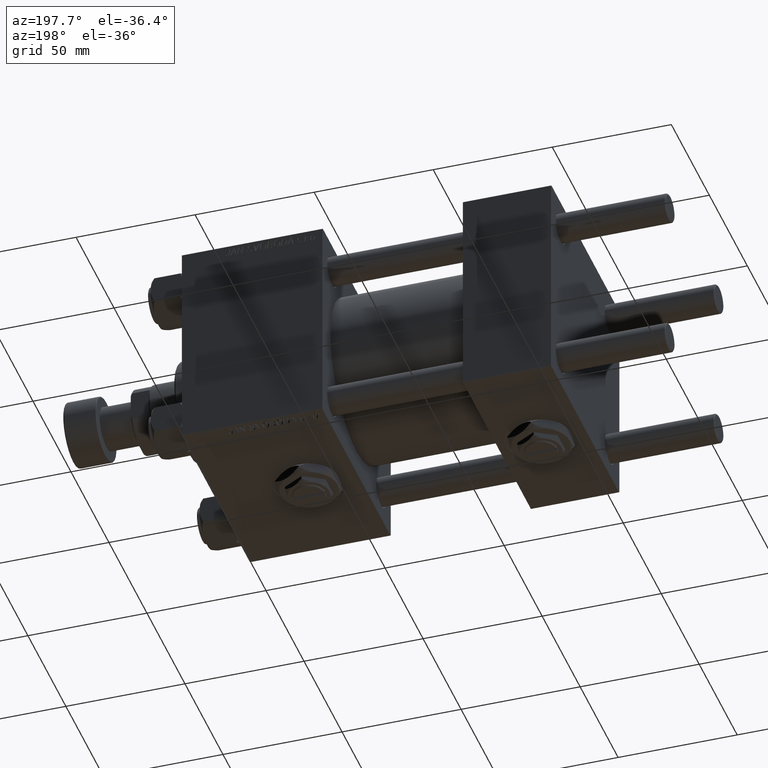
[diagram: clean part render]
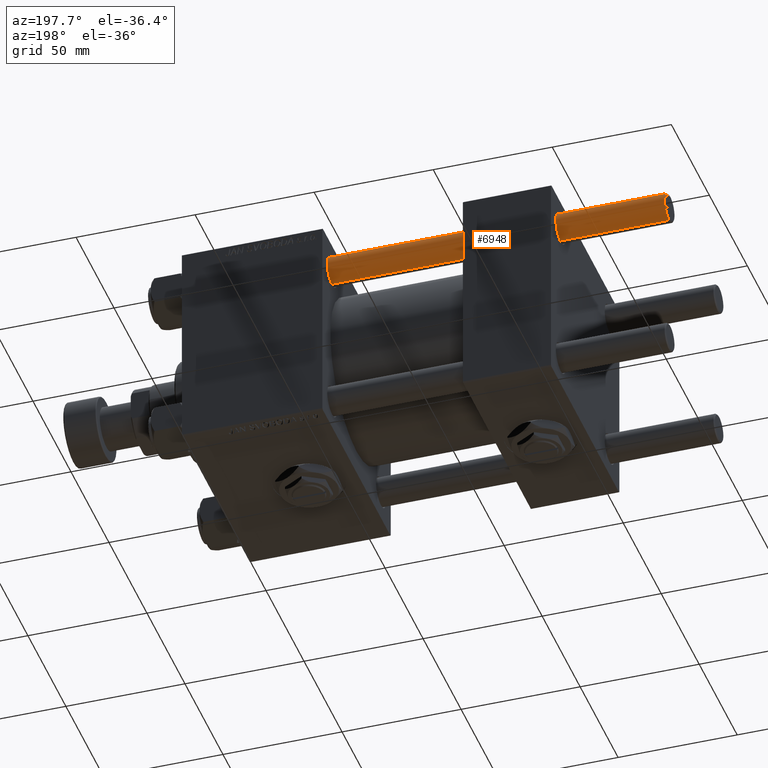
[diagram: same view with one face highlighted and labeled with its STEP entity id]
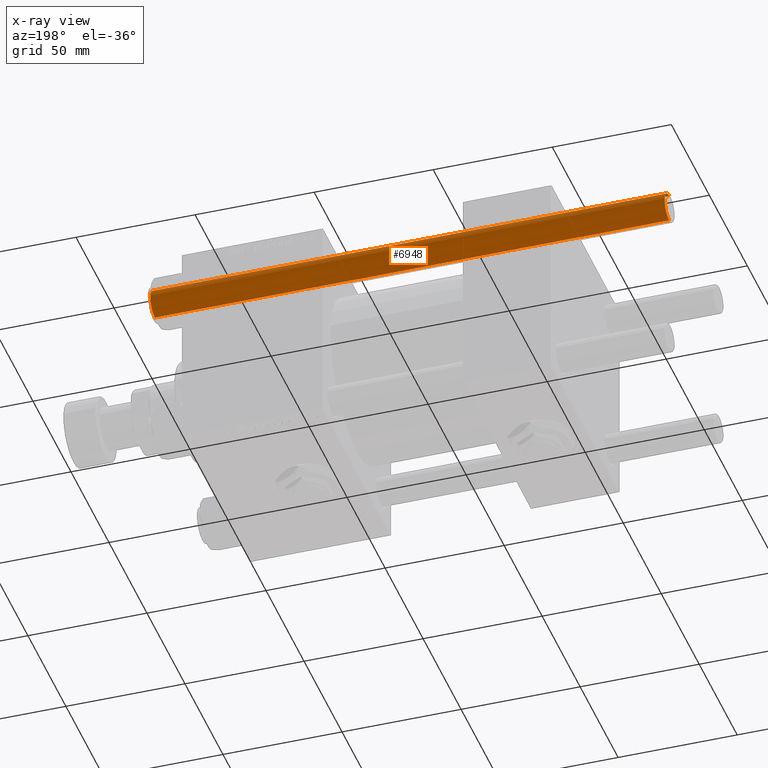
[diagram: x-ray of the same camera — body ghosted, the highlighted face saturated]
A machine part, auxiliary view. The second image highlights one B-rep face of the part: STEP entity #6948.
The next image is the same camera in x-ray: the body ghosted, the highlighted face saturated — about 0% of this face is hidden behind the body in this view.
In plain terms, the highlighted cylindrical surface (edge-blend (fillet) strip) has radius 6 mm, axis along (-1, -0, -0).
Its self-contained STEP definition (entity closure, byte-faithful):
#985 = DIRECTION ( 'NONE',  ( -1.000000000000000000, 0.000000000000000000, 0.000000000000000000 ) ) ;
#1518 = AXIS2_PLACEMENT_3D ( 'NONE', #31226, #27236, #10852 ) ;
#2584 = LINE ( 'NONE', #35120, #11456 ) ;
#4341 = ORIENTED_EDGE ( 'NONE', *, *, #41572, .F. ) ;
#6948 = ADVANCED_FACE ( 'NONE', ( #40158 ), #24029, .T. ) ;
#8688 = DIRECTION ( 'NONE',  ( -0.000000000000000000, -0.000000000000000000, -1.000000000000000000 ) ) ;
#9658 = VECTOR ( 'NONE', #31721, 1000.000000000000000 ) ;
#10852 = DIRECTION ( 'NONE',  ( 1.000000000000000000, 0.000000000000000000, 0.000000000000000000 ) ) ;
#11122 = EDGE_CURVE ( 'NONE', #52052, #28146, #40160, .T. ) ;
#11456 = VECTOR ( 'NONE', #18715, 1000.000000000000000 ) ;
#11604 = CARTESIAN_POINT ( 'NONE',  ( 6.000000000000000888, 7.347880794884120722E-16, 217.0000000000000000 ) ) ;
#11621 = CARTESIAN_POINT ( 'NONE',  ( 0.000000000000000000, 0.000000000000000000, 0.4999999999999449329 ) ) ;
#12683 = DIRECTION ( 'NONE',  ( 1.000000000000000000, 0.000000000000000000, 0.000000000000000000 ) ) ;
#14126 = EDGE_CURVE ( 'NONE', #28146, #21171, #24978, .T. ) ;
#14688 = AXIS2_PLACEMENT_3D ( 'NONE', #40941, #8688, #985 ) ;
#18715 = DIRECTION ( 'NONE',  ( -0.000000000000000000, -0.000000000000000000, -1.000000000000000000 ) ) ;
#20689 = EDGE_CURVE ( 'NONE', #41472, #52052, #27739, .T. ) ;
#21171 = VERTEX_POINT ( 'NONE', #27310 ) ;
#21866 = EDGE_LOOP ( 'NONE', ( #38740, #39734, #36063, #4341 ) ) ;
#24029 = CYLINDRICAL_SURFACE ( 'NONE', #14688, 6.000000000000000888 ) ;
#24978 = CIRCLE ( 'NONE', #35104, 6.000000000000000888 ) ;
#27236 = DIRECTION ( 'NONE',  ( 0.000000000000000000, 0.000000000000000000, -1.000000000000000000 ) ) ;
#27310 = CARTESIAN_POINT ( 'NONE',  ( -6.000000000000000888, 0.000000000000000000, 0.4999999999999449329 ) ) ;
#27739 = CIRCLE ( 'NONE', #1518, 6.000000000000000888 ) ;
#28146 = VERTEX_POINT ( 'NONE', #29626 ) ;
#29626 = CARTESIAN_POINT ( 'NONE',  ( 6.000000000000000888, 7.347880794884120722E-16, 0.4999999999999449329 ) ) ;
#31226 = CARTESIAN_POINT ( 'NONE',  ( 0.000000000000000000, 0.000000000000000000, 216.4999999999999716 ) ) ;
#31721 = DIRECTION ( 'NONE',  ( -0.000000000000000000, -0.000000000000000000, -1.000000000000000000 ) ) ;
#32787 = DIRECTION ( 'NONE',  ( -0.000000000000000000, -0.000000000000000000, 1.000000000000000000 ) ) ;
#35104 = AXIS2_PLACEMENT_3D ( 'NONE', #11621, #32787, #12683 ) ;
#35120 = CARTESIAN_POINT ( 'NONE',  ( -6.000000000000000888, 0.000000000000000000, 217.0000000000000000 ) ) ;
#36063 = ORIENTED_EDGE ( 'NONE', *, *, #14126, .T. ) ;
#38066 = CARTESIAN_POINT ( 'NONE',  ( 6.000000000000000888, 7.347880794884120722E-16, 216.4999999999999716 ) ) ;
#38740 = ORIENTED_EDGE ( 'NONE', *, *, #20689, .T. ) ;
#39734 = ORIENTED_EDGE ( 'NONE', *, *, #11122, .T. ) ;
#40158 = FACE_OUTER_BOUND ( 'NONE', #21866, .T. ) ;
#40160 = LINE ( 'NONE', #11604, #9658 ) ;
#40941 = CARTESIAN_POINT ( 'NONE',  ( 0.000000000000000000, 0.000000000000000000, 217.0000000000000000 ) ) ;
#41222 = CARTESIAN_POINT ( 'NONE',  ( -6.000000000000000888, 0.000000000000000000, 216.4999999999999716 ) ) ;
#41472 = VERTEX_POINT ( 'NONE', #41222 ) ;
#41572 = EDGE_CURVE ( 'NONE', #41472, #21171, #2584, .T. ) ;
#52052 = VERTEX_POINT ( 'NONE', #38066 ) ;